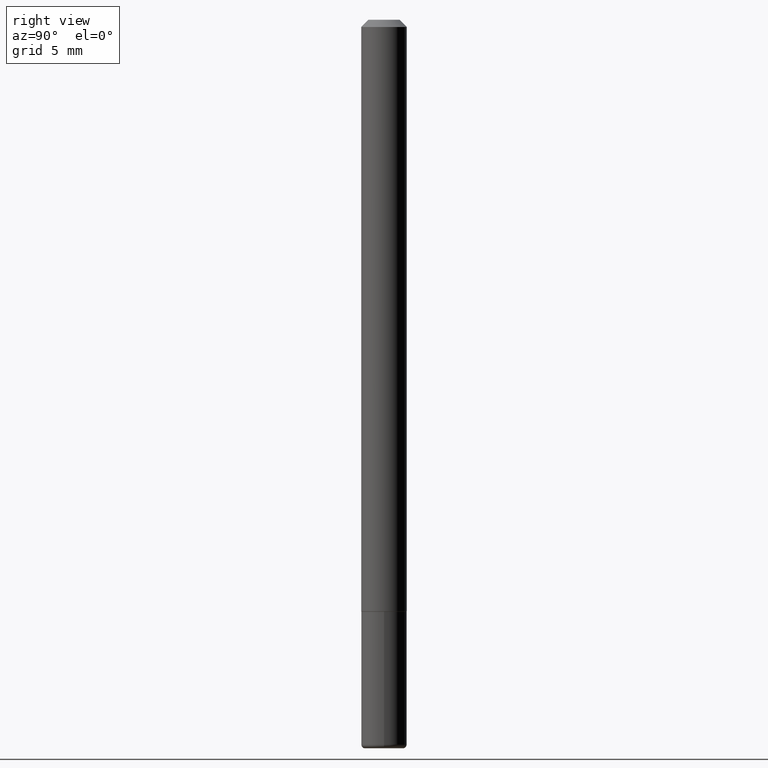
[diagram: clean part render]
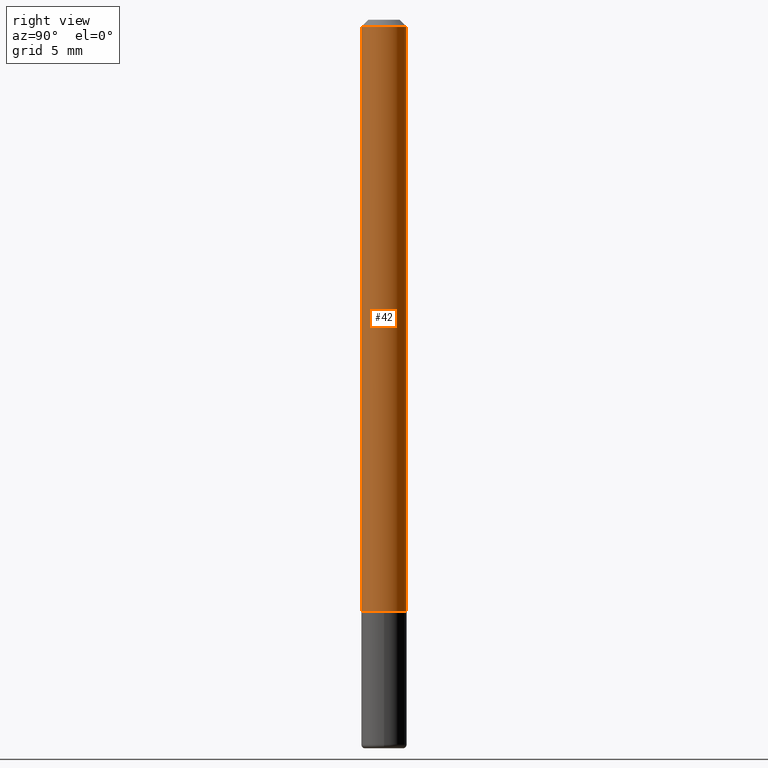
[diagram: same view with one face highlighted and labeled with its STEP entity id]
A machine part, right view. The second image highlights one B-rep face of the part: STEP entity #42.
In plain terms, the highlighted cylindrical surface (edge-blend (fillet) strip) has radius 1.5875 mm, axis along (-0, 0, 1).
Its self-contained STEP definition (entity closure, byte-faithful):
#4 = EDGE_CURVE ( 'NONE', #257, #189, #352, .T. ) ;
#6 = CARTESIAN_POINT ( 'NONE',  ( -4.364351673553526701E-16, -0.06250000000000577316, -1.623999999999999888 ) ) ;
#42 = ADVANCED_FACE ( 'NONE', ( #104 ), #371, .T. ) ;
#66 = AXIS2_PLACEMENT_3D ( 'NONE', #220, #288, #256 ) ;
#80 = VECTOR ( 'NONE', #120, 39.37007874015748143 ) ;
#81 = VECTOR ( 'NONE', #401, 39.37007874015748143 ) ;
#104 = FACE_OUTER_BOUND ( 'NONE', #222, .T. ) ;
#120 = DIRECTION ( 'NONE',  ( -2.455550444361550595E-29, 3.477043859163310348E-15, 1.000000000000000000 ) ) ;
#130 = DIRECTION ( 'NONE',  ( -6.982962677686265922E-15, -1.000000000000000000, 4.370956789862812472E-15 ) ) ;
#132 = ORIENTED_EDGE ( 'NONE', *, *, #4, .F. ) ;
#140 = CARTESIAN_POINT ( 'NONE',  ( 4.440892098500834224E-16, 0.06249999999999447664, -1.624000000000000554 ) ) ;
#150 = CARTESIAN_POINT ( 'NONE',  ( 0.000000000000000000, 0.000000000000000000, 0.000000000000000000 ) ) ;
#156 = ORIENTED_EDGE ( 'NONE', *, *, #337, .T. ) ;
#160 = AXIS2_PLACEMENT_3D ( 'NONE', #150, #406, #237 ) ;
#173 = ORIENTED_EDGE ( 'NONE', *, *, #394, .F. ) ;
#189 = VERTEX_POINT ( 'NONE', #381 ) ;
#220 = CARTESIAN_POINT ( 'NONE',  ( 4.911100888723118566E-31, -6.954087718326643672E-17, -0.02000000000000006981 ) ) ;
#222 = EDGE_LOOP ( 'NONE', ( #287, #156, #173, #132 ) ) ;
#224 = DIRECTION ( 'NONE',  ( -2.455550444361550875E-29, 3.477043859163310348E-15, 1.000000000000000000 ) ) ;
#237 = DIRECTION ( 'NONE',  ( -6.982962677686265922E-15, -1.000000000000000000, 3.477043859163310348E-15 ) ) ;
#252 = VERTEX_POINT ( 'NONE', #140 ) ;
#256 = DIRECTION ( 'NONE',  ( -6.982962677686265922E-15, -1.000000000000000000, 3.483106191921934765E-15 ) ) ;
#257 = VERTEX_POINT ( 'NONE', #6 ) ;
#264 = LINE ( 'NONE', #295, #81 ) ;
#287 = ORIENTED_EDGE ( 'NONE', *, *, #369, .T. ) ;
#288 = DIRECTION ( 'NONE',  ( -2.455550444361550875E-29, 3.477043859163310348E-15, 1.000000000000000000 ) ) ;
#294 = AXIS2_PLACEMENT_3D ( 'NONE', #319, #224, #130 ) ;
#295 = CARTESIAN_POINT ( 'NONE',  ( 4.440892098500630106E-16, 0.06250000000000006939, -2.173152411977071433E-16 ) ) ;
#296 = CARTESIAN_POINT ( 'NONE',  ( 4.364351673553922118E-16, 0.06249999999999995143, -0.02000000000000028491 ) ) ;
#303 = CIRCLE ( 'NONE', #66, 0.06250000000000001388 ) ;
#319 = CARTESIAN_POINT ( 'NONE',  ( 3.987813921643159440E-29, -5.646719227281216646E-15, -1.624000000000000110 ) ) ;
#337 = EDGE_CURVE ( 'NONE', #252, #392, #264, .T. ) ;
#352 = LINE ( 'NONE', #382, #80 ) ;
#369 = EDGE_CURVE ( 'NONE', #257, #252, #377, .T. ) ;
#371 = CYLINDRICAL_SURFACE ( 'NONE', #160, 0.06250000000000006939 ) ;
#377 = CIRCLE ( 'NONE', #294, 0.06250000000000012490 ) ;
#381 = CARTESIAN_POINT ( 'NONE',  ( -4.287811248607203282E-16, -0.06250000000000008327, -0.01999999999999985123 ) ) ;
#382 = CARTESIAN_POINT ( 'NONE',  ( -4.364351673553921131E-16, -0.06250000000000006939, 2.173152411977071433E-16 ) ) ;
#392 = VERTEX_POINT ( 'NONE', #296 ) ;
#394 = EDGE_CURVE ( 'NONE', #189, #392, #303, .T. ) ;
#401 = DIRECTION ( 'NONE',  ( -2.455550444361550595E-29, 3.477043859163310348E-15, 1.000000000000000000 ) ) ;
#406 = DIRECTION ( 'NONE',  ( -2.455550444361550875E-29, 3.477043859163310348E-15, 1.000000000000000000 ) ) ;